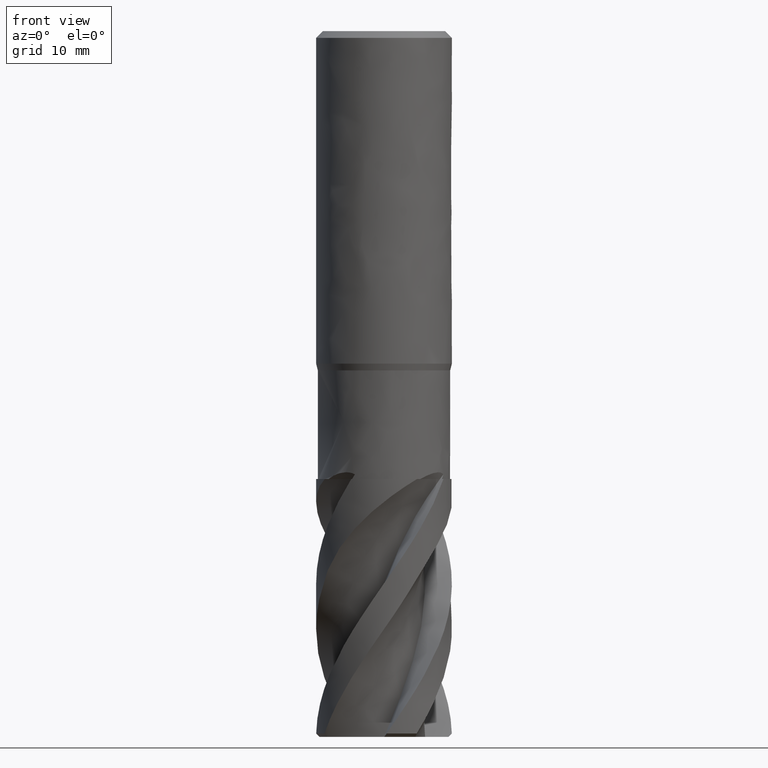
[diagram: clean part render]
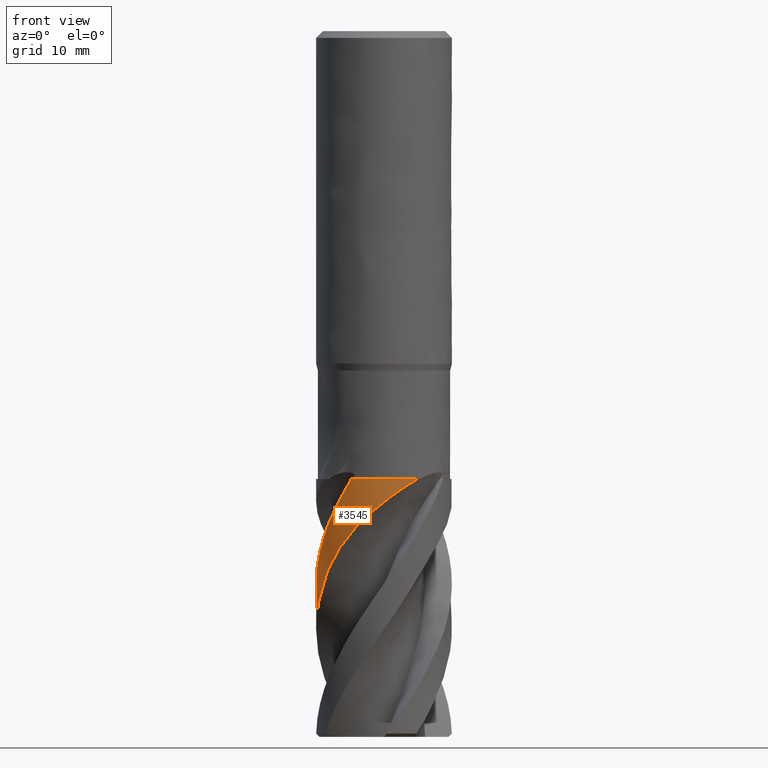
[diagram: same view with one face highlighted and labeled with its STEP entity id]
A machine part, front view. The second image highlights one B-rep face of the part: STEP entity #3545.
In plain terms, the highlighted face is a freeform B-spline surface patch.
Its self-contained STEP definition (entity closure, byte-faithful):
#2026 = VERTEX_POINT('', #2027);
#2027 = CARTESIAN_POINT('', (-4.82659777095646, -8.75807935322569, -66.));
#2033 = EDGE_CURVE('', #2034, #2026, #2036, .T.);
#2034 = VERTEX_POINT('', #2035);
#2035 = CARTESIAN_POINT('', (4.8692228382424, -8.73445298524977, -66.));
#2036 = CIRCLE('', #2037, 10.);
#2037 = AXIS2_PLACEMENT_3D('', #2038, #2039, #2040);
#2038 = CARTESIAN_POINT('', (2.47460364139206E-31, 4.04133443718627E-15, -66.));
#2039 = DIRECTION('', (3.74939945665464E-33, 6.12323399573677E-17, -1.));
#2040 = DIRECTION('', (-1., 6.12323399573677E-17, 0.));
#2372 = EDGE_CURVE('', #2373, #2034, #2375, .T.);
#2373 = VERTEX_POINT('', #2374);
#2374 = CARTESIAN_POINT('', (-10., 6.00827424516588E-15, -88.1225647974432));
#2375 = B_SPLINE_CURVE_WITH_KNOTS('', 3, (#2376, #2377, #2378, #2379, #2380, #2381, #2382, #2383, #2384, #2385, #2386, #2387, #2388, #2389, #2390, #2391, #2392, #2393, #2394, #2395, #2396, #2397, #2398, #2399, #2400, #2401, #2402, #2403, #2404, #2405, #2406, #2407, #2408, #2409, #2410, #2411, #2412, #2413, #2414, #2415, #2416, #2417, #2418, #2419, #2420, #2421, #2422, #2423, #2424, #2425, #2426, #2427, #2428, #2429, #2430, #2431, #2432, #2433, #2434, #2435, #2436, #2437, #2438, #2439, #2440, #2441, #2442, #2443, #2444, #2445, #2446, #2447, #2448, #2449, #2450, #2451, #2452, #2453, #2454, #2455, #2456, #2457, #2458, #2459, #2460, #2461, #2462, #2463, #2464, #2465, #2466, #2467, #2468, #2469, #2470, #2471, #2472, #2473, #2474, #2475, #2476, #2477, #2478, #2479, #2480, #2481, #2482, #2483, #2484, #2485, #2486, #2487, #2488, #2489, #2490, #2491, #2492, #2493, #2494, #2495, #2496, #2497, #2498, #2499, #2500, #2501, #2502, #2503, #2504, #2505, #2506, #2507, #2508), .UNSPECIFIED., .F., .U., (4, 3, 3, 3, 3, 3, 3, 3, 3, 3, 3, 3, 3, 3, 3, 3, 3, 3, 3, 3, 3, 3, 3, 3, 3, 3, 3, 3, 3, 3, 3, 3, 3, 3, 3, 3, 3, 3, 3, 3, 3, 3, 3, 3, 4), (0., 0.99939713390993, 1.44310034881613, 1.88679339037303, 2.88586636587688, 3.55151776714736, 5.05047562621242, 5.71600386362381, 6.71444317167867, 7.15794981365202, 7.60145780073301, 8.04500970148609, 8.48857490433111, 8.93212129858648, 9.1291980330509, 9.794566094572, 10.4599234673367, 11.1253010034378, 12.1237030639562, 13.1220344698447, 14.1203114352504, 15.1185768142965, 16.116821661388, 17.1150244500869, 18.1131765556592, 19.111251782758, 20.1092363816283, 20.7743934105395, 21.4395024311447, 22.1045553227948, 22.7695327769895, 23.4344260516135, 24.0992249732104, 24.5424268898019, 24.6008090813715, 24.6592226029498, 25.3282675844588, 25.9973225981876, 26.6663841153028, 27.3354414582374, 28.0044790260514, 28.6734901725508, 29.3424654309531, 30.0113917932776, 30.7019174370488), .UNSPECIFIED.);
#2376 = CARTESIAN_POINT('', (-10., 6.22446415835949E-15, -88.1225647974432));
#2377 = CARTESIAN_POINT('', (-10., -0.190748857359769, -87.8494493371194));
#2378 = CARTESIAN_POINT('', (-9.99453354867302, -0.381391358726923, -87.576205292261));
#2379 = CARTESIAN_POINT('', (-9.98367095313284, -0.571239266483357, -87.3026784065796));
#2380 = CARTESIAN_POINT('', (-9.97884827714161, -0.655526207236518, -87.1812404372057));
#2381 = CARTESIAN_POINT('', (-9.97296291182209, -0.739664852061073, -87.0597370044004));
#2382 = CARTESIAN_POINT('', (-9.96602638794689, -0.82360065246833, -86.9381582519911));
#2383 = CARTESIAN_POINT('', (-9.95909002311422, -0.907534528372478, -86.8165822871727));
#2384 = CARTESIAN_POINT('', (-9.95110268385822, -0.991266760690142, -86.6949223915818));
#2385 = CARTESIAN_POINT('', (-9.94207562268799, -1.0747708187112, -86.5731878099563));
#2386 = CARTESIAN_POINT('', (-9.92174919874466, -1.26279866656972, -86.2990754861309));
#2387 = CARTESIAN_POINT('', (-9.89614545621825, -1.44971136479908, -86.024537554068));
#2388 = CARTESIAN_POINT('', (-9.86539731104321, -1.63521738471145, -85.7496789189515));
#2389 = CARTESIAN_POINT('', (-9.84491077359893, -1.75881430418224, -85.566549117523));
#2390 = CARTESIAN_POINT('', (-9.82213803097321, -1.88180367498159, -85.3832499106932));
#2391 = CARTESIAN_POINT('', (-9.79712250416325, -2.00409347047935, -85.1998055043301));
#2392 = CARTESIAN_POINT('', (-9.74079088608378, -2.27947372160625, -84.7867132550016));
#2393 = CARTESIAN_POINT('', (-9.67305552225198, -2.55142058236853, -84.3727207839906));
#2394 = CARTESIAN_POINT('', (-9.59445275332706, -2.81894951430047, -83.958109380797));
#2395 = CARTESIAN_POINT('', (-9.55955359859639, -2.93773074450548, -83.7740244215639));
#2396 = CARTESIAN_POINT('', (-9.52250580304316, -3.05566701553344, -83.5897872366507));
#2397 = CARTESIAN_POINT('', (-9.48336795962701, -3.17265380120803, -83.4054057705105));
#2398 = CARTESIAN_POINT('', (-9.42465255267273, -3.34815981098278, -83.1287928589573));
#2399 = CARTESIAN_POINT('', (-9.36122018261115, -3.5215582453491, -82.8517964039353));
#2400 = CARTESIAN_POINT('', (-9.29331939937769, -3.6924537290467, -82.574399975323));
#2401 = CARTESIAN_POINT('', (-9.26315787817526, -3.76836548601748, -82.4511805091455));
#2402 = CARTESIAN_POINT('', (-9.23211314103182, -3.84378912737606, -82.3278723935818));
#2403 = CARTESIAN_POINT('', (-9.20021032554133, -3.91868982771061, -82.204472861549));
#2404 = CARTESIAN_POINT('', (-9.16830741329306, -3.99359075521088, -82.0810729552589));
#2405 = CARTESIAN_POINT('', (-9.13555188055427, -4.06796128360681, -81.9575676175263));
#2406 = CARTESIAN_POINT('', (-9.10185836874308, -4.14200123555529, -81.8341240498525));
#2407 = CARTESIAN_POINT('', (-9.06816152078942, -4.21604851852433, -81.7106682594894));
#2408 = CARTESIAN_POINT('', (-9.03352407056349, -4.28977001862822, -81.5872692647462));
#2409 = CARTESIAN_POINT('', (-8.99785147068871, -4.3633323173264, -81.4640789092807));
#2410 = CARTESIAN_POINT('', (-8.96217780099503, -4.43689682215301, -81.3408848593447));
#2411 = CARTESIAN_POINT('', (-8.9254665864294, -4.51030628582654, -81.2178930599898));
#2412 = CARTESIAN_POINT('', (-8.88762250836472, -4.58368477851702, -81.0952368592279));
#2413 = CARTESIAN_POINT('', (-8.84978003501055, -4.65706015972367, -80.972585859483));
#2414 = CARTESIAN_POINT('', (-8.81080200372632, -4.73040930701282, -80.8502626361733));
#2415 = CARTESIAN_POINT('', (-8.77059849264367, -4.80381120370447, -80.7283811102807));
#2416 = CARTESIAN_POINT('', (-8.75273525041965, -4.83642516763437, -80.674226655582));
#2417 = CARTESIAN_POINT('', (-8.73462922592478, -4.8690506666902, -80.6201585821975));
#2418 = CARTESIAN_POINT('', (-8.71627497656308, -4.90168853895677, -80.566183015003));
#2419 = CARTESIAN_POINT('', (-8.6543075842595, -5.01188012428617, -80.3839513649237));
#2420 = CARTESIAN_POINT('', (-8.58951555895824, -5.12219895134202, -80.2027327176026));
#2421 = CARTESIAN_POINT('', (-8.52189975838641, -5.23232496200467, -80.022480442262));
#2422 = CARTESIAN_POINT('', (-8.45428504402365, -5.3424492035561, -79.8422310625707));
#2423 = CARTESIAN_POINT('', (-8.38383442382458, -5.45240148739104, -79.6629153236136));
#2424 = CARTESIAN_POINT('', (-8.31054881494209, -5.56190420579742, -79.484513218113));
#2425 = CARTESIAN_POINT('', (-8.23726098517435, -5.6714102426312, -79.3061057062221));
#2426 = CARTESIAN_POINT('', (-8.16112503611655, -5.78048684758599, -79.1285784038993));
#2427 = CARTESIAN_POINT('', (-8.0821391233551, -5.888890149318, -78.9519378984849));
#2428 = CARTESIAN_POINT('', (-7.96362039710676, -6.05154980334006, -78.6868880057425));
#2429 = CARTESIAN_POINT('', (-7.83863245099121, -6.21276313933037, -78.4237471364656));
#2430 = CARTESIAN_POINT('', (-7.70714370340022, -6.37180790161931, -78.1626498940324));
#2431 = CARTESIAN_POINT('', (-7.5756642609671, -6.53084140867427, -77.9015711288537));
#2432 = CARTESIAN_POINT('', (-7.43762232751375, -6.68778202714825, -77.6424172683184));
#2433 = CARTESIAN_POINT('', (-7.29304232749652, -6.84189546904541, -77.3853447252541));
#2434 = CARTESIAN_POINT('', (-7.14847021163976, -6.99600050690945, -77.1282862007344));
#2435 = CARTESIAN_POINT('', (-6.99729879893925, -7.14734198064257, -76.8731689868928));
#2436 = CARTESIAN_POINT('', (-6.83967019682237, -7.29512930650991, -76.6201063967806));
#2437 = CARTESIAN_POINT('', (-6.68204342419946, -7.44291491710466, -76.3670467438034));
#2438 = CARTESIAN_POINT('', (-6.51787536383293, -7.58722612530709, -76.1159089871645));
#2439 = CARTESIAN_POINT('', (-6.34734954698847, -7.72729925189553, -75.8668579098559));
#2440 = CARTESIAN_POINT('', (-6.17682723745618, -7.86736949751151, -75.617811954938));
#2441 = CARTESIAN_POINT('', (-5.99985528625586, -8.00327597756513, -75.3707065189575));
#2442 = CARTESIAN_POINT('', (-5.81671783042337, -8.1342359002696, -75.1256930696684));
#2443 = CARTESIAN_POINT('', (-5.63358809060068, -8.2651903053259, -74.8806899433696));
#2444 = CARTESIAN_POINT('', (-5.44418235270542, -8.3912783026948, -74.6376312112587));
#2445 = CARTESIAN_POINT('', (-5.24883269016397, -8.51174220654421, -74.3967182665637));
#2446 = CARTESIAN_POINT('', (-5.0534929463803, -8.63219999391371, -74.1558175540737));
#2447 = CARTESIAN_POINT('', (-4.85208227964923, -8.7471112594021, -73.9169084193151));
#2448 = CARTESIAN_POINT('', (-4.64504455622377, -8.85570782437495, -73.6801743607759));
#2449 = CARTESIAN_POINT('', (-4.43802277900935, -8.96429602515353, -73.443458535683));
#2450 = CARTESIAN_POINT('', (-4.22523184915987, -9.06664572265152, -73.2087547728236));
#2451 = CARTESIAN_POINT('', (-4.00716645031743, -9.16202035794782, -72.9763005704342));
#2452 = CARTESIAN_POINT('', (-3.7891208524682, -9.25738633294076, -72.7438674755846));
#2453 = CARTESIAN_POINT('', (-3.56563337925269, -9.34585079839109, -72.5135211850822));
#2454 = CARTESIAN_POINT('', (-3.33730406769144, -9.42668560840819, -72.285496724814));
#2455 = CARTESIAN_POINT('', (-3.18512251432543, -9.48056203307891, -72.1335183549245));
#2456 = CARTESIAN_POINT('', (-3.03072680011683, -9.53107362847275, -71.982505354649));
#2457 = CARTESIAN_POINT('', (-2.8743103393859, -9.5780133677555, -71.8325391220401));
#2458 = CARTESIAN_POINT('', (-2.71790516815352, -9.62494971912039, -71.6825837133787));
#2459 = CARTESIAN_POINT('', (-2.55942242414663, -9.66833186144497, -71.5336202451923));
#2460 = CARTESIAN_POINT('', (-2.39906724399896, -9.70795943330913, -71.3857415956094));
#2461 = CARTESIAN_POINT('', (-2.23872559632255, -9.74758366097838, -71.2378754255958));
#2462 = CARTESIAN_POINT('', (-2.07644830008911, -9.78346941588369, -71.0910400695899));
#2463 = CARTESIAN_POINT('', (-1.91246509872896, -9.81542038051092, -70.9453260580346));
#2464 = CARTESIAN_POINT('', (-1.74850049810808, -9.84736772091594, -70.7996285749305));
#2465 = CARTESIAN_POINT('', (-1.58276589030462, -9.87539366239695, -70.6549927209268));
#2466 = CARTESIAN_POINT('', (-1.41550606343345, -9.89931020750385, -70.5115182333558));
#2467 = CARTESIAN_POINT('', (-1.24826741000258, -9.92322372501262, -70.3680619082363));
#2468 = CARTESIAN_POINT('', (-1.07943389710712, -9.9430388772534, -70.2257066317543));
#2469 = CARTESIAN_POINT('', (-0.90926268291571, -9.95857627241292, -70.0845659645103));
#2470 = CARTESIAN_POINT('', (-0.739115617215191, -9.97411146270691, -69.9434453261186));
#2471 = CARTESIAN_POINT('', (-0.567556464450645, -9.98537689225375, -69.8034770284788));
#2472 = CARTESIAN_POINT('', (-0.394856010344879, -9.99220139564323, -69.6647889612589));
#2473 = CARTESIAN_POINT('', (-0.279721689621173, -9.99675109162459, -69.5723296999644));
#2474 = CARTESIAN_POINT('', (-0.164051421344047, -9.99932853164302, -69.4804157840195));
#2475 = CARTESIAN_POINT('', (-0.0479323325610451, -9.99988512391496, -69.3890846613592));
#2476 = CARTESIAN_POINT('', (-0.0326361737845798, -9.99995844281416, -69.3770537767898));
#2477 = CARTESIAN_POINT('', (-0.0173319921819228, -9.99999670297247, -69.365032820737));
#2478 = CARTESIAN_POINT('', (-0.00201999022956552, -9.99999979598197, -69.3530218832573));
#2479 = CARTESIAN_POINT('', (0.0133002287002835, -10.0000028906513, -69.3410045002714));
#2480 = CARTESIAN_POINT('', (0.0286283329846504, -9.9999707804288, -69.3289971022092));
#2481 = CARTESIAN_POINT('', (0.0439641190232109, -9.99990335734493, -69.3169997803343));
#2482 = CARTESIAN_POINT('', (0.219614044063985, -9.99913112046074, -69.1795872810513));
#2483 = CARTESIAN_POINT('', (0.396320392051284, -9.99372414685594, -69.0434584041626));
#2484 = CARTESIAN_POINT('', (0.573769459567538, -9.98352586049977, -68.9087605538871));
#2485 = CARTESIAN_POINT('', (0.751221187903472, -9.97332742122197, -68.7740606838395));
#2486 = CARTESIAN_POINT('', (0.929506915388407, -9.95833221673222, -68.6407225591736));
#2487 = CARTESIAN_POINT('', (1.10829761502478, -9.93839405520483, -68.5089138550512));
#2488 = CARTESIAN_POINT('', (1.28709005255261, -9.91845569987339, -68.3771038697145));
#2489 = CARTESIAN_POINT('', (1.46648472233784, -9.89356335896061, -68.2467515484331));
#2490 = CARTESIAN_POINT('', (1.64613565834678, -9.86358136755203, -68.118047363003));
#2491 = CARTESIAN_POINT('', (1.82578547353887, -9.83359956319688, -67.9893439805402));
#2492 = CARTESIAN_POINT('', (2.00579474385426, -9.79851063655895, -67.862213877845));
#2493 = CARTESIAN_POINT('', (2.18578843898129, -9.75819291160084, -67.7368572820192));
#2494 = CARTESIAN_POINT('', (2.36577681409041, -9.71787637830123, -67.6115043913195));
#2495 = CARTESIAN_POINT('', (2.54586006535456, -9.67230652569118, -67.4878477466268));
#2496 = CARTESIAN_POINT('', (2.72564595048017, -9.62137485771306, -67.36612023969));
#2497 = CARTESIAN_POINT('', (2.9054247355868, -9.57044520110423, -67.2443975399581));
#2498 = CARTESIAN_POINT('', (3.08502404877848, -9.51412063565866, -67.1245236784671));
#2499 = CARTESIAN_POINT('', (3.26403199346027, -9.45230634002471, -67.006770522574));
#2500 = CARTESIAN_POINT('', (3.44303033553002, -9.39049536032571, -66.8890236833719));
#2501 = CARTESIAN_POINT('', (3.62156353993807, -9.32315149912395, -66.773313838089));
#2502 = CARTESIAN_POINT('', (3.79919702424501, -9.25019469908471, -66.6599605302494));
#2503 = CARTESIAN_POINT('', (3.97681752514105, -9.17724323153172, -66.5466155075177));
#2504 = CARTESIAN_POINT('', (4.15367405128803, -9.09862370557879, -66.4355394360297));
#2505 = CARTESIAN_POINT('', (4.32930544658238, -9.01427281316647, -66.3271116117826));
#2506 = CARTESIAN_POINT('', (4.51060788752761, -8.92719827467276, -66.2151827099514));
#2507 = CARTESIAN_POINT('', (4.69075616716101, -8.83394335884982, -66.1059808581102));
#2508 = CARTESIAN_POINT('', (4.8692228382424, -8.73445298524976, -66.));
#2707 = VERTEX_POINT('', #2708);
#2708 = CARTESIAN_POINT('', (-10., 5.59612192885848E-15, -81.3916066698532));
#2799 = EDGE_CURVE('', #2707, #2026, #2800, .T.);
#2800 = B_SPLINE_CURVE_WITH_KNOTS('', 3, (#2801, #2802, #2803, #2804, #2805, #2806, #2807, #2808, #2809, #2810, #2811, #2812, #2813, #2814, #2815, #2816, #2817, #2818, #2819, #2820, #2821, #2822, #2823, #2824, #2825, #2826, #2827, #2828, #2829, #2830, #2831, #2832, #2833, #2834, #2835, #2836, #2837, #2838, #2839, #2840, #2841, #2842, #2843, #2844, #2845, #2846, #2847, #2848, #2849, #2850, #2851, #2852, #2853, #2854, #2855, #2856, #2857, #2858, #2859, #2860, #2861, #2862, #2863, #2864, #2865, #2866, #2867, #2868, #2869, #2870, #2871, #2872, #2873, #2874, #2875, #2876, #2877, #2878, #2879, #2880, #2881, #2882, #2883, #2884, #2885), .UNSPECIFIED., .F., .U., (4, 3, 3, 3, 3, 3, 3, 3, 3, 3, 3, 3, 3, 3, 3, 3, 3, 3, 3, 3, 3, 3, 3, 3, 3, 3, 3, 3, 4), (0., 0.443796624189204, 0.887562351887043, 1.33127848590942, 2.33069304582936, 2.7743845249123, 3.21807547486173, 4.2173133973544, 4.88299151742278, 5.88191315864477, 6.88068881226241, 7.87930403798392, 8.54473113796251, 9.21011244503765, 9.87544551257855, 10.5407369601652, 11.2059829259574, 11.8711815556848, 12.5363397772087, 13.2014508308329, 13.8665156235959, 14.5315412376284, 15.1965205468736, 15.86145754829, 16.5263575175057, 17.1912040232981, 17.8560034728358, 18.520764981818, 18.7284858637152), .UNSPECIFIED.);
#2801 = CARTESIAN_POINT('', (-10., 5.88495338760862E-15, -81.3916066698532));
#2802 = CARTESIAN_POINT('', (-10., -0.0842836773980419, -81.2700328243655));
#2803 = CARTESIAN_POINT('', (-9.99893424188697, -0.168607680436036, -81.1484822483961));
#2804 = CARTESIAN_POINT('', (-9.99680085123903, -0.252928331087109, -81.0269527676083));
#2805 = CARTESIAN_POINT('', (-9.99466760911472, -0.337243111454109, -80.9054317475306));
#2806 = CARTESIAN_POINT('', (-9.99146655214532, -0.421558910079233, -80.7839254939226));
#2807 = CARTESIAN_POINT('', (-9.98719982224214, -0.505806000959324, -80.6624137087938));
#2808 = CARTESIAN_POINT('', (-9.98293356917349, -0.590043676684925, -80.5409155033888));
#2809 = CARTESIAN_POINT('', (-9.9776023245754, -0.674209926048815, -80.41940049265));
#2810 = CARTESIAN_POINT('', (-9.97120979127419, -0.758271256476041, -80.2978734212283));
#2811 = CARTESIAN_POINT('', (-9.956811417255, -0.947608788094787, -80.0241490391505));
#2812 = CARTESIAN_POINT('', (-9.93702616843882, -1.13644578607358, -79.7503085647448));
#2813 = CARTESIAN_POINT('', (-9.91189610168712, -1.32450582081074, -79.4764784084846));
#2814 = CARTESIAN_POINT('', (-9.90073957372199, -1.40799533388689, -79.3549111310794));
#2815 = CARTESIAN_POINT('', (-9.88852868382688, -1.49134023110078, -79.2333366381455));
#2816 = CARTESIAN_POINT('', (-9.87526599075656, -1.57452266157299, -79.11177038428));
#2817 = CARTESIAN_POINT('', (-9.86200331350293, -1.65770499284427, -78.9902042753908));
#2818 = CARTESIAN_POINT('', (-9.84768769415555, -1.74073125938849, -78.8686415899963));
#2819 = CARTESIAN_POINT('', (-9.83232392906741, -1.82356961860205, -78.7470879860216));
#2820 = CARTESIAN_POINT('', (-9.79772314059046, -2.0101301738099, -78.4733366942249));
#2821 = CARTESIAN_POINT('', (-9.75779725704621, -2.19577214623935, -78.1995791602614));
#2822 = CARTESIAN_POINT('', (-9.71262357634385, -2.38011412840863, -77.9258654462009));
#2823 = CARTESIAN_POINT('', (-9.6825295114874, -2.50292014024815, -77.7435212551817));
#2824 = CARTESIAN_POINT('', (-9.65010293392861, -2.62516652454861, -77.5611693585957));
#2825 = CARTESIAN_POINT('', (-9.61537442328255, -2.74673892099046, -77.378822282245));
#2826 = CARTESIAN_POINT('', (-9.56326055652634, -2.92917138214527, -77.1051908749792));
#2827 = CARTESIAN_POINT('', (-9.50595063104228, -3.11012697530762, -76.8315112150466));
#2828 = CARTESIAN_POINT('', (-9.44355214026351, -3.28927392810706, -76.5578610685371));
#2829 = CARTESIAN_POINT('', (-9.38116276872474, -3.46839469943901, -76.2842509146832));
#2830 = CARTESIAN_POINT('', (-9.31366909246021, -3.64575738273713, -76.0106005194594));
#2831 = CARTESIAN_POINT('', (-9.24119115003131, -3.82104516180891, -75.7369943370277));
#2832 = CARTESIAN_POINT('', (-9.16872484933974, -3.99630478535897, -75.4634321024677));
#2833 = CARTESIAN_POINT('', (-9.09125940916677, -4.16952883567967, -75.1898368558379));
#2834 = CARTESIAN_POINT('', (-9.00894256993604, -4.34038636201827, -74.9162765512745));
#2835 = CARTESIAN_POINT('', (-8.95409075694758, -4.45423724805786, -74.7339896849759));
#2836 = CARTESIAN_POINT('', (-8.89707719844549, -4.56705468651704, -74.5516921092707));
#2837 = CARTESIAN_POINT('', (-8.83794853658669, -4.67874616373288, -74.3694064473847));
#2838 = CARTESIAN_POINT('', (-8.77882394380338, -4.79042995464164, -74.1871333299077));
#2839 = CARTESIAN_POINT('', (-8.71757779058452, -4.90100052918742, -74.0048505573408));
#2840 = CARTESIAN_POINT('', (-8.65426314166005, -5.01036220995093, -73.8225767139334));
#2841 = CARTESIAN_POINT('', (-8.59095308298953, -5.11971596209293, -73.6403160852125));
#2842 = CARTESIAN_POINT('', (-8.52556744843029, -5.22787387687179, -73.4580432136799));
#2843 = CARTESIAN_POINT('', (-8.45816024419181, -5.33474697465335, -73.2757803452578));
#2844 = CARTESIAN_POINT('', (-8.39075725661548, -5.44161338698117, -73.0935288783014));
#2845 = CARTESIAN_POINT('', (-8.3213249243362, -5.54720793408081, -72.9112664251347));
#2846 = CARTESIAN_POINT('', (-8.24991882232794, -5.65144578183309, -72.7290170637703));
#2847 = CARTESIAN_POINT('', (-8.17851760190603, -5.75567650349895, -72.5467801616491));
#2848 = CARTESIAN_POINT('', (-8.1051355187547, -5.85856128304213, -72.364533831391));
#2849 = CARTESIAN_POINT('', (-8.02983605636202, -5.96001114998524, -72.1822966738955));
#2850 = CARTESIAN_POINT('', (-7.95454195195784, -6.06145379818861, -72.0000724836187));
#2851 = CARTESIAN_POINT('', (-7.87732195504919, -6.16147369503962, -71.817836308337));
#2852 = CARTESIAN_POINT('', (-7.79823949253239, -6.25998888314573, -71.6356106504585));
#2853 = CARTESIAN_POINT('', (-7.71916183396451, -6.35849808684118, -71.4533960620728));
#2854 = CARTESIAN_POINT('', (-7.63821207712884, -6.45551505921256, -71.2711714760576));
#2855 = CARTESIAN_POINT('', (-7.55545600634064, -6.55096058118587, -71.0889598392151));
#2856 = CARTESIAN_POINT('', (-7.4727058039758, -6.64639933489764, -70.906761123419));
#2857 = CARTESIAN_POINT('', (-7.38814152365616, -6.74027599168474, -70.7245523493749));
#2858 = CARTESIAN_POINT('', (-7.30183630505061, -6.83250953707675, -70.5423521680218));
#2859 = CARTESIAN_POINT('', (-7.21553708928281, -6.92473666729461, -70.3601646593453));
#2860 = CARTESIAN_POINT('', (-7.12748710038509, -7.01533179599302, -70.1779645992792));
#2861 = CARTESIAN_POINT('', (-7.0377583010709, -7.10422114631207, -69.9957748287607));
#2862 = CARTESIAN_POINT('', (-6.94803478764839, -7.19310526019108, -69.8135957909768));
#2863 = CARTESIAN_POINT('', (-6.85662104268829, -7.28029528023331, -69.631406947616));
#2864 = CARTESIAN_POINT('', (-6.76359259468431, -7.36571892031806, -69.4492300941316));
#2865 = CARTESIAN_POINT('', (-6.67057062411882, -7.45113661247628, -69.2670659253624));
#2866 = CARTESIAN_POINT('', (-6.57592492536148, -7.53479662925764, -69.0848910240277));
#2867 = CARTESIAN_POINT('', (-6.47973541679118, -7.61662844888616, -68.9027257549389));
#2868 = CARTESIAN_POINT('', (-6.38355202806431, -7.69845506214726, -68.72057207571));
#2869 = CARTESIAN_POINT('', (-6.28581378372086, -7.77846337143705, -68.5384068966334));
#2870 = CARTESIAN_POINT('', (-6.18659857572696, -7.85658946762608, -68.3562546049696));
#2871 = CARTESIAN_POINT('', (-6.0873888933054, -7.93471121275439, -68.1741124578761));
#2872 = CARTESIAN_POINT('', (-5.9866882237574, -8.01096196826998, -67.9919642438511));
#2873 = CARTESIAN_POINT('', (-5.88458447190155, -8.08527461457279, -67.8098275250042));
#2874 = CARTESIAN_POINT('', (-5.78248893002669, -8.15958128552795, -67.6277054514466));
#2875 = CARTESIAN_POINT('', (-5.67898067987686, -8.23195732029027, -67.4455719200592));
#2876 = CARTESIAN_POINT('', (-5.57415107527546, -8.30233941669488, -67.2634440935174));
#2877 = CARTESIAN_POINT('', (-5.46932889026419, -8.37271653162206, -67.08132915755));
#2878 = CARTESIAN_POINT('', (-5.36317329274984, -8.4411083237422, -66.8991988086024));
#2879 = CARTESIAN_POINT('', (-5.25577188097937, -8.50745919385492, -66.7170752860596));
#2880 = CARTESIAN_POINT('', (-5.14837659868032, -8.57380627727847, -66.5349621574298));
#2881 = CARTESIAN_POINT('', (-5.03972308826713, -8.63812051060295, -66.3528347423324));
#2882 = CARTESIAN_POINT('', (-4.9298959624083, -8.70035205033856, -66.1707190877445));
#2883 = CARTESIAN_POINT('', (-4.89557780900835, -8.71979780666024, -66.1138126275071));
#2884 = CARTESIAN_POINT('', (-4.86114423276149, -8.73904071829014, -66.0569059809247));
#2885 = CARTESIAN_POINT('', (-4.82659777095646, -8.75807935322569, -66.));
#3531 = EDGE_CURVE('', #2707, #2373, #3532, .T.);
#3532 = LINE('', #3533, #3534);
#3533 = CARTESIAN_POINT('', (-10., 5.59612192885848E-15, -81.3916066698532));
#3534 = VECTOR('', #3535, 6.73095812758997);
#3535 = DIRECTION('', (0., 4.12152316307396E-16, -6.73095812758997));
#3545 = ADVANCED_FACE('', (#3546), #3552, .T.);
#3546 = FACE_OUTER_BOUND('', #3547, .T.);
#3547 = EDGE_LOOP('', (#3548, #3549, #3550, #3551));
#3548 = ORIENTED_EDGE('', *, *, #2372, .T.);
#3549 = ORIENTED_EDGE('', *, *, #2033, .T.);
#3550 = ORIENTED_EDGE('', *, *, #2799, .F.);
#3551 = ORIENTED_EDGE('', *, *, #3531, .T.);
#3552 = (
   BOUNDED_SURFACE ()
   B_SPLINE_SURFACE (2, 1, ((#3553, #3554), (#3555, #3556), (#3557, #3558), (#3559, #3560), (#3561, #3562)), .UNSPECIFIED., .F., .F., .U.)
   B_SPLINE_SURFACE_WITH_KNOTS ((3, 2, 3), (2, 2), (41.9113648598515, 47.1238898038469, 62.8318530717959), (0., 0.589935061265152), .UNSPECIFIED.)
   GEOMETRIC_REPRESENTATION_ITEM ()
   RATIONAL_B_SPLINE_SURFACE (((0.870118203954967, 0.870118203954967), (0.902806418442079, 0.902806418442079), (1., 1.), (0.707106781186548, 0.707106781186548), (1., 1.)))
   REPRESENTATION_ITEM ('')
   SURFACE ()
);
#3553 = CARTESIAN_POINT('', (4.86922283824241, -8.73445298524976, -66.));
#3554 = CARTESIAN_POINT('', (4.86922283824241, -8.73445298524976, -88.1225647974432));
#3555 = CARTESIAN_POINT('', (2.59907393190295, -9.99999999999999, -66.));
#3556 = CARTESIAN_POINT('', (2.59907393190295, -9.99999999999999, -88.1225647974432));
#3557 = CARTESIAN_POINT('', (1.22464679914735E-15, -10., -66.));
#3558 = CARTESIAN_POINT('', (1.22464679914735E-15, -9.99999999999999, -88.1225647974432));
#3559 = CARTESIAN_POINT('', (-10., -10., -66.));
#3560 = CARTESIAN_POINT('', (-10., -10., -88.1225647974432));
#3561 = CARTESIAN_POINT('', (-10., 4.65365783675994E-15, -66.));
#3562 = CARTESIAN_POINT('', (-10., 6.00827424516588E-15, -88.1225647974432));